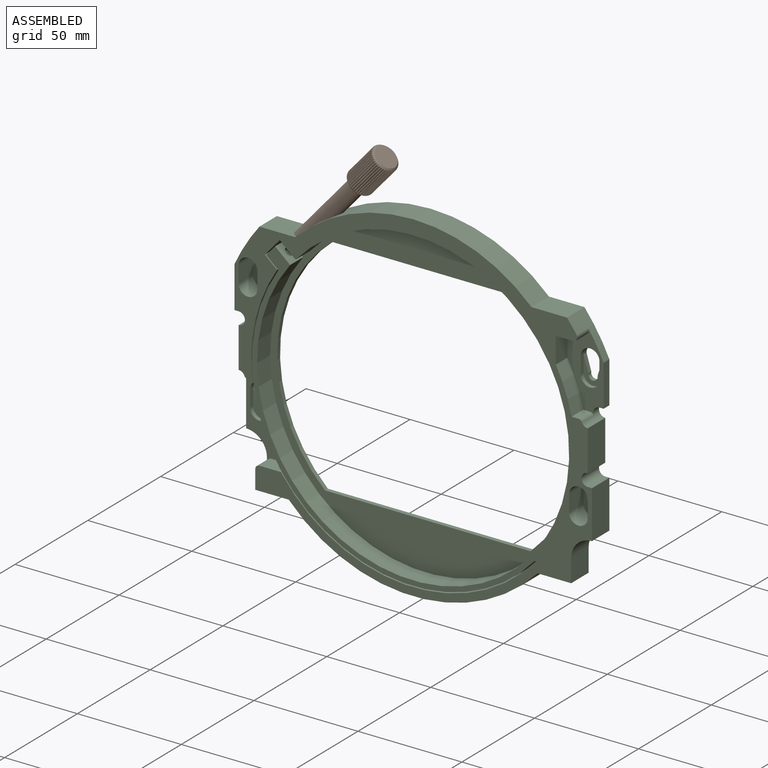
[diagram: assembled view]
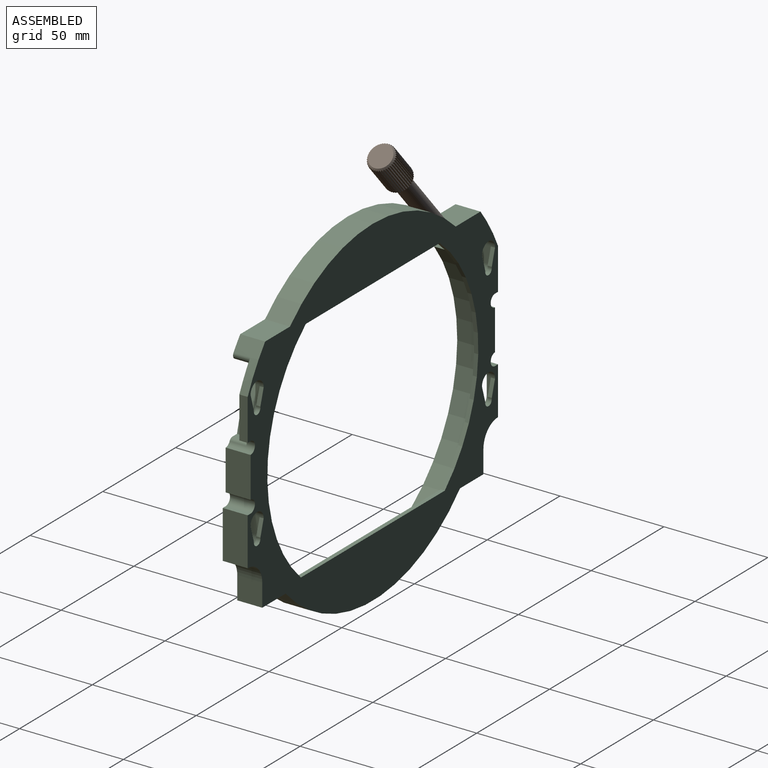
[diagram: assembled view, second angle]
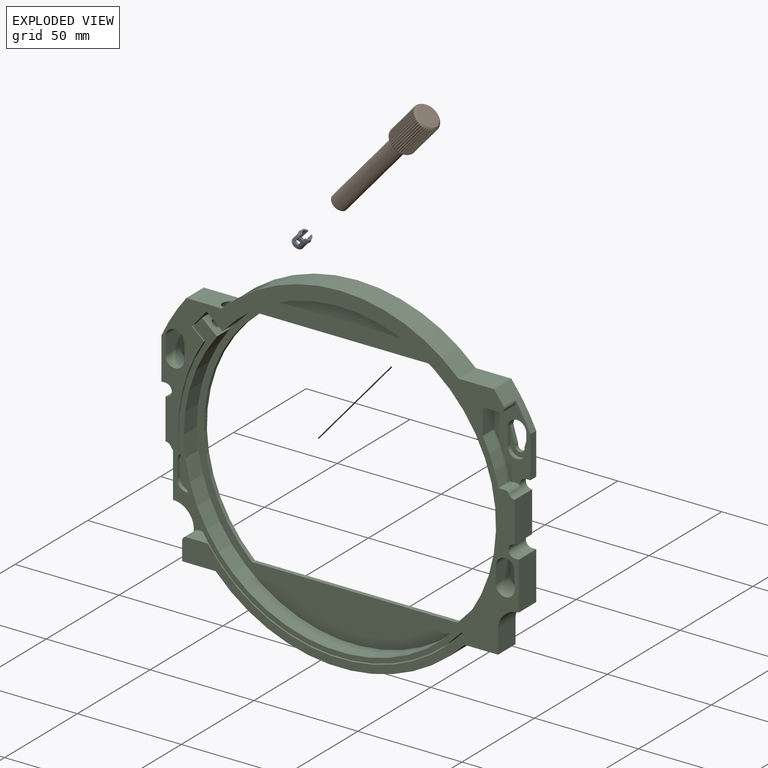
[diagram: exploded view]
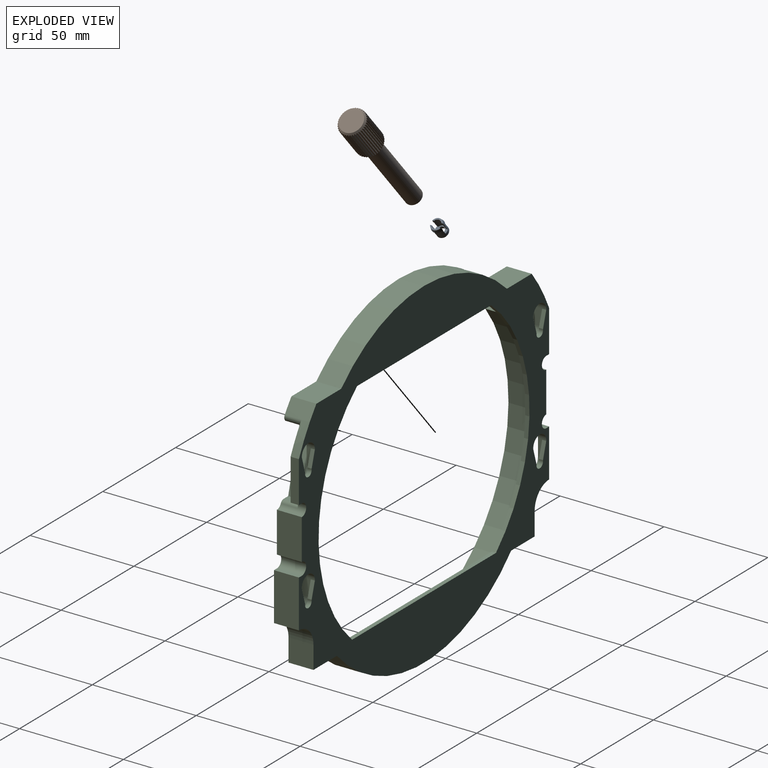
[diagram: exploded view, second angle]
ASSEMBLY  parts=3 mates=2
PART A: 18 faces, bbox 6.2x5.9x6.6 mm
  f0: cylinder r=2.75mm len=5.5mm, axis (0,0,1), area 71.7mm2, adj f4,f7,f9,f11,f12,f13,f14,f15
  f1: cylinder r=2.75mm len=5.12mm, axis (0,0,1), area 2.4mm2, adj f5,f8,f12,f15
  f2: plane 5.12x1.75mm, normal (0,0,1), area 3.8mm2, adj f6,f13,f14,f17
  f3: cylinder r=1.55mm len=3.1mm, axis (0,0,1), area 15.6mm2, adj f7,f11
  f4: cone r=2.75mm half-angle=62.2deg, axis (0,0,1), area 2.8mm2, adj f0,f5,f12,f15
  f5: cone r=3.1mm half-angle=17.4deg, axis (0,0,-1), area 8.4mm2, adj f1,f4,f12,f15
  f6: cylinder r=2.75mm len=5.12mm, axis (0,0,1), area 2.4mm2, adj f2,f10,f13,f14
  f7: plane 5.5x5.5mm, normal (0,0,-1), area 16.2mm2, adj f0,f3
  f8: plane 5.12x1.75mm, normal (0,0,1), area 3.8mm2, adj f1,f12,f15,f16
  f9: cone r=2.75mm half-angle=62.2deg, axis (0,0,1), area 2.8mm2, adj f0,f10,f13,f14
  f10: cone r=3.1mm half-angle=17.4deg, axis (0,0,-1), area 8.4mm2, adj f6,f9,f13,f14
  f11: plane 5.5x4.1mm, normal (0,0,1), area 8.5mm2, adj f0,f3,f12,f13,f14,f15,f16,f17
  f12: plane 5.01x1.15mm, normal (1,0,0), area 4.1mm2, adj f0,f1,f4,f5,f8,f11,f16
  f13: plane 5.01x1.15mm, normal (-1,0,0), area 4.1mm2, adj f0,f2,f6,f9,f10,f11,f17
  f14: plane 5.01x1.15mm, normal (-1,0,0), area 4.1mm2, adj f0,f2,f6,f9,f10,f11,f17
  f15: plane 5.01x1.15mm, normal (1,0,0), area 4.1mm2, adj f0,f1,f4,f5,f8,f11,f16
  f16: cylinder r=2.05mm len=5mm, axis (0,0,1), area 21.8mm2, adj f8,f11,f12,f15
  f17: cylinder r=2.05mm len=5mm, axis (0,0,1), area 21.8mm2, adj f2,f11,f13,f14
PART B: 138 faces, bbox 12.8x12.8x65 mm
  f0: cylinder r=2.85mm len=5.7mm, axis (0,0,1), area 89.4mm2, adj f2,f127
  f1: plane 10.81x10.81mm, normal (0,0,-1), area 42.7mm2, adj f3,f4
  f2: plane 7.9x7.9mm, normal (0,0,-1), area 23.5mm2, adj f0,f3
  f3: cylinder r=3.95mm len=45mm, axis (0,0,-1), area 1116.8mm2, adj f1,f2
  f4: cone r=7.21mm half-angle=45deg, axis (0,0,1), area 38.2mm2, adj f1,f5,f6,f7,f8,f9,f10,f11
  f5: cylinder r=6mm len=18.81mm, axis (0,0,-1), area 4.8mm2, adj f4,f6,f124,f125
  f6: plane 18.82x0.4mm, normal (0.68,0.73,0), area 9.9mm2, adj f4,f5,f7,f125
  f7: plane 18.82x0.44mm, normal (0.6,-0.8,0), area 9.9mm2, adj f4,f6,f8,f125
  f8: cylinder r=6mm len=18.81mm, axis (0,0,-1), area 4.8mm2, adj f4,f7,f9,f125
  f9: plane 18.82x0.44mm, normal (0.79,0.61,0), area 9.9mm2, adj f4,f8,f10,f125
  f10: plane 18.82x0.49mm, normal (0.46,-0.89,0), area 9.9mm2, adj f4,f9,f11,f125
  f11: cylinder r=6mm len=18.81mm, axis (0,0,-1), area 4.8mm2, adj f4,f10,f12,f125
  f12: plane 18.82x0.48mm, normal (0.88,0.48,0), area 9.9mm2, adj f4,f11,f13,f125
  f13: plane 18.82x0.52mm, normal (0.32,-0.95,0), area 9.9mm2, adj f4,f12,f14,f125
  f14: cylinder r=6mm len=18.81mm, axis (0,0,-1), area 4.8mm2, adj f4,f13,f15,f125
  f15: plane 18.82x0.52mm, normal (0.94,0.34,0), area 9.9mm2, adj f4,f14,f16,f125
  f16: plane 18.82x0.54mm, normal (0.17,-0.99,0), area 9.9mm2, adj f4,f15,f17,f125
  f17: cylinder r=6mm len=18.81mm, axis (0,0,-1), area 4.8mm2, adj f4,f16,f18,f125
  f18: plane 18.82x0.54mm, normal (0.98,0.19,0), area 9.9mm2, adj f4,f17,f19,f125
  f19: plane 18.82x0.55mm, normal (0.01,-1,0), area 9.9mm2, adj f4,f18,f20,f125
  f20: cylinder r=6mm len=18.81mm, axis (0,0,-1), area 4.8mm2, adj f4,f19,f21,f125
  f21: plane 18.82x0.55mm, normal (1,0.03,0), area 9.9mm2, adj f4,f20,f22,f125
  f22: plane 18.82x0.54mm, normal (-0.15,-0.99,0), area 9.9mm2, adj f4,f21,f23,f125
  f23: cylinder r=6mm len=18.81mm, axis (0,0,-1), area 4.8mm2, adj f4,f22,f24,f125
  f24: plane 18.82x0.55mm, normal (0.99,-0.13,0), area 9.9mm2, adj f4,f23,f25,f125
  f25: plane 18.82x0.53mm, normal (-0.3,-0.95,0), area 9.9mm2, adj f4,f24,f26,f125
  f26: cylinder r=6mm len=18.81mm, axis (0,0,-1), area 4.8mm2, adj f4,f25,f27,f125
  f27: plane 18.82x0.53mm, normal (0.96,-0.28,0), area 9.9mm2, adj f4,f26,f28,f125
  f28: plane 18.82x0.49mm, normal (-0.44,-0.9,0), area 9.9mm2, adj f4,f27,f29,f125
  f29: cylinder r=6mm len=18.81mm, axis (0,0,-1), area 4.8mm2, adj f4,f28,f30,f125
  f30: plane 18.82x0.5mm, normal (0.9,-0.43,0), area 9.9mm2, adj f4,f29,f31,f125
  f31: plane 18.82x0.45mm, normal (-0.58,-0.82,0), area 9.9mm2, adj f4,f30,f32,f125
  f32: cylinder r=6mm len=18.81mm, axis (0,0,-1), area 4.8mm2, adj f4,f31,f33,f125
  f33: plane 18.82x0.46mm, normal (0.83,-0.56,0), area 9.9mm2, adj f4,f32,f34,f125
  f34: plane 18.82x0.4mm, normal (-0.7,-0.72,0), area 9.9mm2, adj f4,f33,f35,f125
  f35: cylinder r=6mm len=18.81mm, axis (0,0,-1), area 4.8mm2, adj f4,f34,f36,f125
  f36: plane 18.82x0.4mm, normal (0.73,-0.68,0), area 9.9mm2, adj f4,f35,f37,f125
  f37: plane 18.82x0.44mm, normal (-0.8,-0.6,0), area 9.9mm2, adj f4,f36,f38,f125
  f38: cylinder r=6mm len=18.81mm, axis (0,0,-1), area 4.8mm2, adj f4,f37,f39,f125
  f39: plane 18.82x0.44mm, normal (0.61,-0.79,0), area 9.9mm2, adj f4,f38,f40,f125
  f40: plane 18.82x0.49mm, normal (-0.89,-0.46,0), area 9.9mm2, adj f4,f39,f41,f125
  f41: cylinder r=6mm len=18.81mm, axis (0,0,-1), area 4.8mm2, adj f4,f40,f42,f125
  f42: plane 18.82x0.48mm, normal (0.48,-0.88,0), area 9.9mm2, adj f4,f41,f43,f125
  f43: plane 18.82x0.52mm, normal (-0.95,-0.32,0), area 9.9mm2, adj f4,f42,f44,f125
  f44: cylinder r=6mm len=18.81mm, axis (0,0,-1), area 4.8mm2, adj f4,f43,f45,f125
  f45: plane 18.82x0.52mm, normal (0.34,-0.94,0), area 9.9mm2, adj f4,f44,f46,f125
  f46: plane 18.82x0.54mm, normal (-0.99,-0.17,0), area 9.9mm2, adj f4,f45,f47,f125
  f47: cylinder r=6mm len=18.81mm, axis (0,0,-1), area 4.8mm2, adj f4,f46,f48,f125
  f48: plane 18.82x0.54mm, normal (0.19,-0.98,0), area 9.9mm2, adj f4,f47,f49,f125
  f49: plane 18.82x0.55mm, normal (-1,-0.01,0), area 9.9mm2, adj f4,f48,f50,f125
  f50: cylinder r=6mm len=18.81mm, axis (0,0,-1), area 4.8mm2, adj f4,f49,f51,f125
  f51: plane 18.82x0.55mm, normal (0.03,-1,0), area 9.9mm2, adj f4,f50,f52,f125
  f52: plane 18.82x0.54mm, normal (-0.99,0.15,0), area 9.9mm2, adj f4,f51,f53,f125
  f53: cylinder r=6mm len=18.81mm, axis (0,0,-1), area 4.8mm2, adj f4,f52,f54,f125
  f54: plane 18.82x0.55mm, normal (-0.13,-0.99,0), area 9.9mm2, adj f4,f53,f55,f125
  f55: plane 18.82x0.53mm, normal (-0.95,0.3,0), area 9.9mm2, adj f4,f54,f56,f125
  f56: cylinder r=6mm len=18.81mm, axis (0,0,-1), area 4.8mm2, adj f4,f55,f57,f125
  f57: plane 18.82x0.53mm, normal (-0.28,-0.96,0), area 9.9mm2, adj f4,f56,f58,f125
  f58: plane 18.82x0.49mm, normal (-0.9,0.44,0), area 9.9mm2, adj f4,f57,f59,f125
  f59: cylinder r=6mm len=18.81mm, axis (0,0,-1), area 4.8mm2, adj f4,f58,f60,f125
  f60: plane 18.82x0.5mm, normal (-0.43,-0.9,0), area 9.9mm2, adj f4,f59,f61,f125
  f61: plane 18.82x0.45mm, normal (-0.82,0.58,0), area 9.9mm2, adj f4,f60,f62,f125
  f62: cylinder r=6mm len=18.81mm, axis (0,0,-1), area 4.8mm2, adj f4,f61,f63,f125
  f63: plane 18.82x0.46mm, normal (-0.56,-0.83,0), area 9.9mm2, adj f4,f62,f64,f125
  f64: plane 18.82x0.4mm, normal (-0.72,0.7,0), area 9.9mm2, adj f4,f63,f65,f125
  f65: cylinder r=6mm len=18.81mm, axis (0,0,-1), area 4.8mm2, adj f4,f64,f66,f125
  f66: plane 18.82x0.4mm, normal (-0.68,-0.73,0), area 9.9mm2, adj f4,f65,f67,f125
  f67: plane 18.82x0.44mm, normal (-0.6,0.8,0), area 9.9mm2, adj f4,f66,f68,f125
  f68: cylinder r=6mm len=18.81mm, axis (0,0,-1), area 4.8mm2, adj f4,f67,f69,f125
  f69: plane 18.82x0.44mm, normal (-0.79,-0.61,0), area 9.9mm2, adj f4,f68,f70,f125
  f70: plane 18.82x0.49mm, normal (-0.46,0.89,0), area 9.9mm2, adj f4,f69,f71,f125
  f71: cylinder r=6mm len=18.81mm, axis (0,0,-1), area 4.8mm2, adj f4,f70,f72,f125
  f72: plane 18.82x0.48mm, normal (-0.88,-0.48,0), area 9.9mm2, adj f4,f71,f73,f125
  f73: plane 18.82x0.52mm, normal (-0.32,0.95,0), area 9.9mm2, adj f4,f72,f74,f125
  f74: cylinder r=6mm len=18.81mm, axis (0,0,-1), area 4.8mm2, adj f4,f73,f75,f125
  f75: plane 18.82x0.52mm, normal (-0.94,-0.34,0), area 9.9mm2, adj f4,f74,f76,f125
  f76: plane 18.82x0.54mm, normal (-0.17,0.99,0), area 9.9mm2, adj f4,f75,f77,f125
  f77: cylinder r=6mm len=18.81mm, axis (0,0,-1), area 4.8mm2, adj f4,f76,f78,f125
  f78: plane 18.82x0.54mm, normal (-0.98,-0.19,0), area 9.9mm2, adj f4,f77,f79,f125
  f79: plane 18.82x0.55mm, normal (-0.01,1,0), area 9.9mm2, adj f4,f78,f80,f125
  f80: cylinder r=6mm len=18.81mm, axis (0,0,-1), area 4.8mm2, adj f4,f79,f81,f125
  f81: plane 18.82x0.55mm, normal (-1,-0.03,0), area 9.9mm2, adj f4,f80,f82,f125
  f82: plane 18.82x0.54mm, normal (0.15,0.99,0), area 9.9mm2, adj f4,f81,f83,f125
  f83: cylinder r=6mm len=18.81mm, axis (0,0,-1), area 4.8mm2, adj f4,f82,f84,f125
  f84: plane 18.82x0.55mm, normal (-0.99,0.13,0), area 9.9mm2, adj f4,f83,f85,f125
  f85: plane 18.82x0.53mm, normal (0.3,0.95,0), area 9.9mm2, adj f4,f84,f86,f125
  f86: cylinder r=6mm len=18.81mm, axis (0,0,-1), area 4.8mm2, adj f4,f85,f87,f125
  f87: plane 18.82x0.53mm, normal (-0.96,0.28,0), area 9.9mm2, adj f4,f86,f88,f125
  f88: plane 18.82x0.49mm, normal (0.44,0.9,0), area 9.9mm2, adj f4,f87,f89,f125
  f89: cylinder r=6mm len=18.81mm, axis (0,0,-1), area 4.8mm2, adj f4,f88,f90,f125
  f90: plane 18.82x0.5mm, normal (-0.9,0.43,0), area 9.9mm2, adj f4,f89,f91,f125
  f91: plane 18.82x0.45mm, normal (0.58,0.82,0), area 9.9mm2, adj f4,f90,f92,f125
  f92: cylinder r=6mm len=18.81mm, axis (0,0,-1), area 4.8mm2, adj f4,f91,f93,f125
  f93: plane 18.82x0.46mm, normal (-0.83,0.56,0), area 9.9mm2, adj f4,f92,f94,f125
  f94: plane 18.82x0.4mm, normal (0.7,0.72,0), area 9.9mm2, adj f4,f93,f95,f125
  f95: cylinder r=6mm len=18.81mm, axis (0,0,-1), area 4.8mm2, adj f4,f94,f96,f125
  f96: plane 18.82x0.4mm, normal (-0.73,0.68,0), area 9.9mm2, adj f4,f95,f97,f125
  f97: plane 18.82x0.44mm, normal (0.8,0.6,0), area 9.9mm2, adj f4,f96,f98,f125
  f98: cylinder r=6mm len=18.81mm, axis (0,0,-1), area 4.8mm2, adj f4,f97,f99,f125
  f99: plane 18.82x0.44mm, normal (-0.61,0.79,0), area 9.9mm2, adj f4,f98,f100,f125
  f100: plane 18.82x0.49mm, normal (0.89,0.46,0), area 9.9mm2, adj f4,f99,f101,f125
  f101: cylinder r=6mm len=18.81mm, axis (0,0,-1), area 4.8mm2, adj f4,f100,f102,f125
  f102: plane 18.82x0.48mm, normal (-0.48,0.88,0), area 9.9mm2, adj f4,f101,f103,f125
  f103: plane 18.82x0.52mm, normal (0.95,0.32,0), area 9.9mm2, adj f4,f102,f104,f125
  f104: cylinder r=6mm len=18.81mm, axis (0,0,-1), area 4.8mm2, adj f4,f103,f105,f125
  f105: plane 18.82x0.52mm, normal (-0.34,0.94,0), area 9.9mm2, adj f4,f104,f106,f125
  f106: plane 18.82x0.54mm, normal (0.99,0.17,0), area 9.9mm2, adj f4,f105,f107,f125
  f107: cylinder r=6mm len=18.81mm, axis (0,0,-1), area 4.8mm2, adj f4,f106,f108,f125
  f108: plane 18.82x0.54mm, normal (-0.19,0.98,0), area 9.9mm2, adj f4,f107,f109,f125
  f109: plane 18.82x0.55mm, normal (1,0.01,0), area 9.9mm2, adj f4,f108,f110,f125
  f110: cylinder r=6mm len=18.81mm, axis (0,0,-1), area 4.8mm2, adj f4,f109,f111,f125
  f111: plane 18.82x0.55mm, normal (-0.03,1,0), area 9.9mm2, adj f4,f110,f112,f125
  f112: plane 18.82x0.54mm, normal (0.99,-0.15,0), area 9.9mm2, adj f4,f111,f113,f125
  f113: cylinder r=6mm len=18.81mm, axis (0,0,-1), area 4.8mm2, adj f4,f112,f114,f125
  f114: plane 18.82x0.55mm, normal (0.13,0.99,0), area 9.9mm2, adj f4,f113,f115,f125
  f115: plane 18.82x0.53mm, normal (0.95,-0.3,0), area 9.9mm2, adj f4,f114,f116,f125
  f116: cylinder r=6mm len=18.81mm, axis (0,0,-1), area 4.8mm2, adj f4,f115,f117,f125
  f117: plane 18.82x0.53mm, normal (0.28,0.96,0), area 9.9mm2, adj f4,f116,f118,f125
  f118: plane 18.82x0.49mm, normal (0.9,-0.44,0), area 9.9mm2, adj f4,f117,f119,f125
  f119: cylinder r=6mm len=18.81mm, axis (0,0,-1), area 4.8mm2, adj f4,f118,f120,f125
  f120: plane 18.82x0.5mm, normal (0.43,0.9,0), area 9.9mm2, adj f4,f119,f121,f125
  f121: plane 18.82x0.45mm, normal (0.82,-0.58,0), area 9.9mm2, adj f4,f120,f122,f125
  f122: cylinder r=6mm len=18.81mm, axis (0,0,-1), area 4.8mm2, adj f4,f121,f123,f125
  f123: plane 18.82x0.46mm, normal (0.56,0.83,0), area 9.9mm2, adj f4,f122,f124,f125
  f124: plane 18.82x0.4mm, normal (0.72,-0.7,0), area 9.9mm2, adj f4,f5,f123,f125
  f125: cone r=7.21mm half-angle=45deg, axis (0,0,-1), area 38.2mm2, adj f5,f6,f7,f8,f9,f10,f11,f12
  f126: plane 10.81x10.81mm, normal (0,0,1), area 91.7mm2, adj f125
  f127: cone r=2.75mm half-angle=62.2deg, axis (0,0,1), area 5.3mm2, adj f0,f128
  f128: cone r=3.1mm half-angle=17.4deg, axis (0,0,-1), area 15.6mm2, adj f127,f137
  f129: plane 2.8x2.43mm, normal (0,0,-1), area 5.1mm2, adj f130,f131,f132,f133,f134,f135
  f130: plane 1.5x1.4mm, normal (1,0,0), area 2.1mm2, adj f129,f131,f135,f136
  f131: plane 1.5x1.21mm, normal (0.5,-0.87,0), area 2.1mm2, adj f129,f130,f132,f136
  f132: plane 1.5x1.21mm, normal (-0.5,-0.87,0), area 2.1mm2, adj f129,f131,f133,f136
  f133: plane 1.5x1.4mm, normal (-1,0,0), area 2.1mm2, adj f129,f132,f134,f136
  f134: plane 1.5x1.21mm, normal (-0.5,0.87,0), area 2.1mm2, adj f129,f133,f135,f136
  f135: plane 1.5x1.21mm, normal (0.5,0.87,0), area 2.1mm2, adj f129,f130,f134,f136
  f136: plane 5.7x5.7mm, normal (0,0,-1), area 20.4mm2, adj f130,f131,f132,f133,f134,f135,f137
  f137: cylinder r=2.85mm len=5.7mm, axis (0,0,1), area 73mm2, adj f128,f136
PART C: 110 faces, bbox 172x12x164 mm
  f0: cylinder r=4.5mm len=9mm, axis (0,1,0), area 48.2mm2, adj f5,f11,f28,f29,f61,f62,f103
  f1: plane 4x2mm, normal (0,0,1), area 8mm2, adj f29,f32,f33,f103
  f2: plane 4x2mm, normal (0,0,-1), area 8mm2, adj f29,f46,f47,f98
  f3: cylinder r=4.5mm len=9mm, axis (0,1,0), area 56.5mm2, adj f8,f10,f29,f66,f67,f98
  f4: plane 172x164mm, normal (0,-1,0), area 3956.2mm2, adj f11,f13,f14,f15,f30,f31,f32,f35
  f5: plane 8x2mm, normal (1,0,0), area 16mm2, adj f0,f6,f28,f103
  f6: cylinder r=4.5mm len=9mm, axis (0,-1,0), area 28.3mm2, adj f5,f7,f28,f103
  f7: plane 3.89x2mm, normal (-1,0,0), area 7.8mm2, adj f6,f28,f78,f103
  f8: plane 8x2mm, normal (1,0,0), area 16mm2, adj f3,f9,f76,f98
  f9: cylinder r=4.5mm len=9mm, axis (0,-1,0), area 28.3mm2, adj f8,f10,f76,f98
  f10: plane 8x2mm, normal (-1,0,0), area 16mm2, adj f3,f9,f76,f98
  f11: cylinder r=78.05mm len=56.29mm, axis (0,-1,0), area 548.3mm2, adj f0,f4,f28,f77,f103,f105
  f12: plane 136.08x130mm, normal (0,1,0), area 595.2mm2, adj f13,f14,f81,f82,f83,f84,f86,f87
  f13: cylinder r=77.55mm len=136.08mm, axis (0,-1,0), area 2092.5mm2, adj f4,f12,f14,f81,f95,f96,f97
  f14: plane 10x2.26mm, normal (-0.66,0,-0.75), area 8.5mm2, adj f4,f12,f13,f15,f28,f78,f82
  f15: cylinder r=75.05mm len=131.69mm, axis (0,1,0), area 2357.8mm2, adj f4,f14,f28,f79
  f16: cylinder r=2.25mm len=4.5mm, axis (0,1,0), area 14.1mm2, adj f17,f18,f29,f68
  f17: plane 2x0.5mm, normal (1,0,0), area 1mm2, adj f16,f29,f58,f68
  f18: plane 2x0.5mm, normal (-1,0,0), area 1mm2, adj f16,f29,f60,f68
  f19: plane 2x0.5mm, normal (1,0,0), area 1mm2, adj f21,f28,f29,f62
  f20: plane 2x0.5mm, normal (-1,0,0), area 1mm2, adj f21,f28,f29,f61
  f21: cylinder r=2.25mm len=4.5mm, axis (0,1,0), area 14.1mm2, adj f19,f20,f28,f29
  f22: cylinder r=2.25mm len=4.5mm, axis (0,1,0), area 14.1mm2, adj f23,f24,f29,f72
  f23: plane 2x0.5mm, normal (-1,0,0), area 1mm2, adj f22,f29,f63,f72
  f24: plane 2x0.5mm, normal (1,0,0), area 1mm2, adj f22,f29,f65,f72
  f25: plane 2x0.5mm, normal (-1,0,0), area 1mm2, adj f27,f29,f67,f76
  f26: plane 2x0.5mm, normal (1,0,0), area 1mm2, adj f27,f29,f66,f76
  f27: cylinder r=2.25mm len=4.5mm, axis (0,1,0), area 14.1mm2, adj f25,f26,f29,f76
  f28: plane 159.05x153.1mm, normal (0,-1,0), area 4384.7mm2, adj f0,f5,f6,f7,f11,f14,f15,f19
  f29: plane 172x164mm, normal (0,1,0), area 8442.8mm2, adj f0,f1,f2,f3,f16,f17,f18,f19
  f30: cylinder r=3mm len=12mm, axis (0,1,0), area 113.1mm2, adj f4,f29,f31,f45
  f31: plane 19.5x12mm, normal (-1,0,0), area 234mm2, adj f4,f29,f30,f32
  f32: cylinder r=3mm len=12mm, axis (0,1,0), area 65.5mm2, adj f1,f4,f29,f31,f103,f108
  f33: plane 23x4mm, normal (-1,0,0), area 92mm2, adj f1,f29,f34,f103
  f34: cylinder r=10mm len=10mm, axis (0,1,0), area 62.8mm2, adj f29,f33,f35,f103
  f35: plane 12x11mm, normal (-1,0,0), area 116mm2, adj f4,f29,f34,f36,f103,f109
  f36: plane 16.1x12mm, normal (0,0,-1), area 193.2mm2, adj f4,f29,f35,f37
  f37: cylinder r=82mm len=119.8mm, axis (0,1,0), area 1611.9mm2, adj f4,f29,f36,f51
  f38: plane 98.94x2mm, normal (0,0,1), area 197.9mm2, adj f28,f29,f39,f50
  f39: cylinder r=72.5mm len=109mm, axis (0,1,0), area 246.9mm2, adj f28,f29,f38,f40
  f40: plane 92.09x2mm, normal (0,0,-1), area 184.2mm2, adj f28,f29,f39,f50
  f41: cylinder r=82mm len=113.89mm, axis (0,1,0), area 1335.3mm2, adj f4,f29,f42,f49,f92
  f42: plane 17.05x12mm, normal (0,0,1), area 190.5mm2, adj f4,f29,f41,f43,f92
  f43: cylinder r=94.64mm len=19.5mm, axis (0,1,0), area 275.5mm2, adj f4,f29,f42,f44
  f44: plane 20x12mm, normal (-1,0,0), area 240mm2, adj f4,f29,f43,f45
  f45: plane 12x2mm, normal (0,0,-1), area 24mm2, adj f4,f29,f30,f44
  f46: cylinder r=3mm len=12mm, axis (0,1,0), area 65.5mm2, adj f2,f4,f29,f57,f98,f106
  f47: plane 20x4mm, normal (1,0,0), area 80mm2, adj f2,f29,f48,f98
  f48: cylinder r=94.64mm len=19.5mm, axis (0,1,0), area 154mm2, adj f4,f29,f47,f49,f98,f107
  f49: plane 17.05x12mm, normal (0,0,1), area 204.6mm2, adj f4,f29,f41,f48
  f50: cylinder r=72.5mm len=109mm, axis (0,1,0), area 246.9mm2, adj f28,f29,f38,f40
  f51: plane 16.1x12mm, normal (0,0,-1), area 193.2mm2, adj f4,f29,f37,f52
  f52: plane 12x11mm, normal (1,0,0), area 132mm2, adj f4,f29,f51,f53
  f53: cylinder r=10mm len=12mm, axis (0,1,0), area 188.5mm2, adj f4,f29,f52,f54
  f54: plane 23x12mm, normal (1,0,0), area 276mm2, adj f4,f29,f53,f55
  f55: plane 12x2mm, normal (0,0,1), area 24mm2, adj f4,f29,f54,f56
  f56: cylinder r=3mm len=12mm, axis (0,1,0), area 113.1mm2, adj f4,f29,f55,f57
  f57: plane 19.5x12mm, normal (1,0,0), area 234mm2, adj f4,f29,f46,f56
  f58: plane 7.5x2.25mm, normal (0.96,0,0.29), area 15.7mm2, adj f17,f29,f59,f68
  f59: cylinder r=4.5mm len=12mm, axis (0,1,0), area 169.6mm2, adj f4,f29,f58,f60,f69,f71
  f60: plane 7.5x2.25mm, normal (-0.96,0,0.29), area 15.7mm2, adj f18,f29,f59,f68
  f61: plane 7.5x2.25mm, normal (-0.96,0,0.29), area 15.7mm2, adj f0,f20,f28,f29
  f62: plane 7.5x2.25mm, normal (0.96,0,0.29), area 15.7mm2, adj f0,f19,f28,f29
  f63: plane 7.5x2.25mm, normal (-0.96,0,0.29), area 15.7mm2, adj f23,f29,f64,f72
  f64: cylinder r=4.5mm len=12mm, axis (0,1,0), area 169.6mm2, adj f4,f29,f63,f65,f73,f75
  f65: plane 7.5x2.25mm, normal (0.96,0,0.29), area 15.7mm2, adj f24,f29,f64,f72
  f66: plane 7.5x2.25mm, normal (0.96,0,0.29), area 15.7mm2, adj f3,f26,f29,f76
  f67: plane 7.5x2.25mm, normal (-0.96,0,0.29), area 15.7mm2, adj f3,f25,f29,f76
  f68: plane 12.5x9mm, normal (0,-1,0), area 43mm2, adj f16,f17,f18,f58,f60,f69,f70,f71
  f69: plane 10x8mm, normal (1,0,0), area 80mm2, adj f4,f59,f68,f70
  f70: cylinder r=4.5mm len=10mm, axis (0,-1,0), area 141.4mm2, adj f4,f68,f69,f71
  f71: plane 10x8mm, normal (-1,0,0), area 80mm2, adj f4,f59,f68,f70
  f72: plane 12.5x9mm, normal (0,-1,0), area 43mm2, adj f22,f23,f24,f63,f65,f73,f74,f75
  f73: plane 10x8mm, normal (1,0,0), area 80mm2, adj f4,f64,f72,f74
  f74: cylinder r=4.5mm len=10mm, axis (0,-1,0), area 141.4mm2, adj f4,f72,f73,f75
  f75: plane 10x8mm, normal (-1,0,0), area 80mm2, adj f4,f64,f72,f74
  f76: plane 12.5x9mm, normal (0,-1,0), area 43mm2, adj f8,f9,f10,f25,f26,f27,f66,f67
  f77: plane 10x5.87mm, normal (0.66,0,0.75), area 77.8mm2, adj f4,f11,f28,f80
  f78: cylinder r=78.05mm len=133.91mm, axis (0,-1,0), area 1466mm2, adj f4,f7,f14,f28,f103,f104
  f79: plane 10x7.55mm, normal (-0.66,0,-0.75), area 91.7mm2, adj f4,f15,f28,f80,f94
  f80: plane 10x8.3mm, normal (0.75,0,-0.66), area 110mm2, adj f4,f28,f77,f79
  f81: plane 9x5.82mm, normal (-0.66,0,-0.75), area 56.9mm2, adj f4,f12,f13,f84,f90
  f82: cylinder r=75.16mm len=131.88mm, axis (0,-1,0), area 2089mm2, adj f4,f12,f14,f83
  f83: plane 9x7.17mm, normal (0.66,0,0.75), area 72.9mm2, adj f4,f12,f82,f84,f91
  f84: plane 9x4.91mm, normal (-0.75,0,0.66), area 58.5mm2, adj f4,f12,f81,f83
  f85: plane 6.17x5.82mm, normal (0,1,0), area 15mm2, adj f86,f87,f88,f89
  f86: plane 7x1.89mm, normal (0.75,0,-0.66), area 17.5mm2, adj f12,f85,f87,f89
  f87: plane 7x4.53mm, normal (-0.66,0,-0.75), area 29.4mm2, adj f12,f85,f86,f88,f91
  f88: plane 7x1.89mm, normal (-0.75,0,0.66), area 17.5mm2, adj f12,f85,f87,f89
  f89: plane 7x4.53mm, normal (0.66,0,0.75), area 29.4mm2, adj f12,f85,f86,f88,f90
  f90: cylinder r=2mm len=4.33mm, axis (0.66,0,0.75), area 25.1mm2, adj f81,f89
  f91: cylinder r=2mm len=4.33mm, axis (0.66,0,0.75), area 25.1mm2, adj f83,f87
  f92: cylinder r=4mm len=27.23mm, axis (0.66,0,0.75), area 393.5mm2, adj f41,f42,f93
  f93: plane 8x6.04mm, normal (0.66,0,0.75), area 42mm2, adj f92,f94
  f94: cylinder r=1.62mm len=3.87mm, axis (0.66,0,0.75), area 22.1mm2, adj f79,f93
  f95: cylinder r=4.5mm len=3.05mm, axis (0,1,0), area 3.4mm2, adj f12,f13,f96,f97
  f96: plane 2.22x1mm, normal (-1,0,0), area 2.2mm2, adj f12,f13,f95,f97
  f97: plane 5.27x1.19mm, normal (0,1,0), area 2.2mm2, adj f13,f95,f96
  f98: plane 37.43x17.41mm, normal (0,-1,0), area 315.4mm2, adj f2,f3,f8,f9,f10,f46,f47,f48
  f99: plane 8.34x8mm, normal (0,0,-1), area 66.7mm2, adj f4,f98,f100,f107
  f100: plane 12.52x8mm, normal (1,0,0), area 100.1mm2, adj f4,f98,f99,f102
  f101: plane 8x3.2mm, normal (0,0,1), area 25.6mm2, adj f4,f98,f102,f106
  f102: cylinder r=77.98mm len=20.6mm, axis (0,-1,0), area 176.3mm2, adj f4,f98,f100,f101
  f103: plane 39.2x22.23mm, normal (0,-1,0), area 269.9mm2, adj f0,f1,f5,f6,f7,f11,f32,f33
  f104: plane 10.23x8mm, normal (0,0,1), area 81.8mm2, adj f4,f78,f103,f109
  f105: plane 8x1.89mm, normal (0,0,-1), area 15.1mm2, adj f4,f11,f103,f108
  f106: cylinder r=2mm len=8mm, axis (0,1,0), area 18.5mm2, adj f4,f46,f98,f101
  f107: cylinder r=2mm len=8mm, axis (0,1,0), area 34.6mm2, adj f4,f48,f98,f99
  f108: cylinder r=2mm len=8mm, axis (0,1,0), area 18.5mm2, adj f4,f32,f103,f105
  f109: cylinder r=2mm len=8mm, axis (0,1,0), area 25.1mm2, adj f4,f35,f103,f104
PLACE A rot(axis=(0,1,0),41deg) t=(-52.24,-7.5,61.54)mm
PLACE B rot(axis=(0,1,0),41deg) t=(-52.24,-7.5,61.54)mm
PLACE C at identity
MATE fastened B.f3 <-> A.f0  axis (-0.66,0,-0.75) through (-58.8,-7.5,53.99)mm
MATE fastened A.f3 <-> C.f90  axis (-0.66,0,-0.75) through (-58.8,-7.5,53.99)mm
